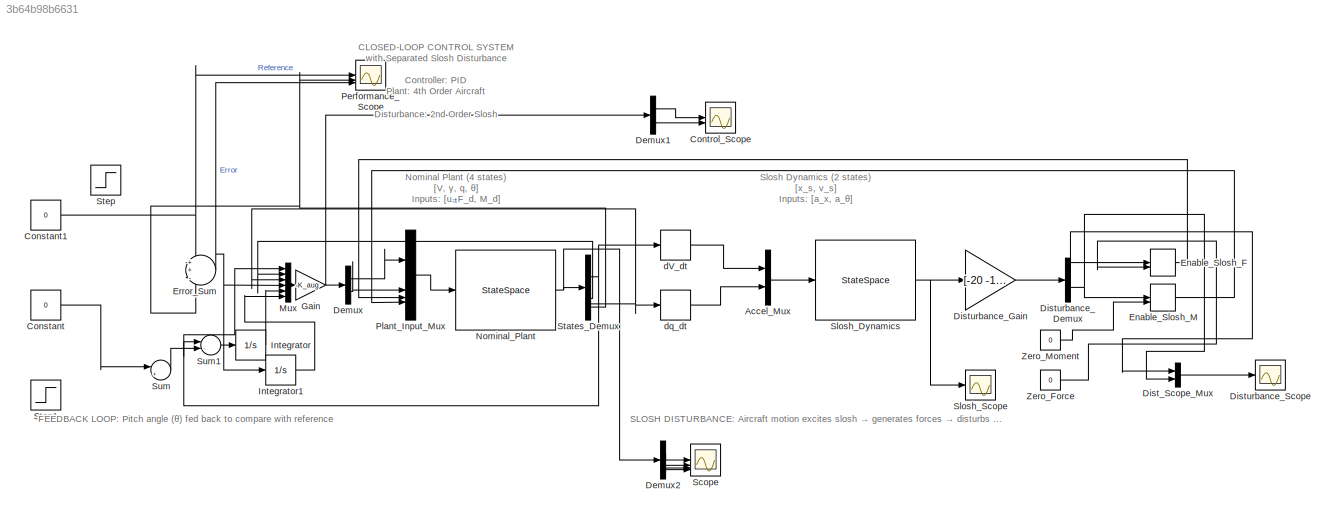
MODEL slx_3b64b98b6631
KIND model
CONFIG AbsTol = auto
CONFIG EnableMultiTasking = off
CONFIG FixedStep = auto
CONFIG MaxStep = auto
CONFIG MinStep = auto
CONFIG RelTol = 1e-3
CONFIG SampleTimeConstraint = Unconstrained
CONFIG SolverName = ode45
CONFIG StartTime = 0.0
CONFIG StopTime = 20
BLOCK [Mux] Accel_Mux
  DisplayOption = bar
  Inputs = 2
BLOCK [Constant] Constant
  Value = 0
BLOCK [Constant] Constant1
  Value = 0
BLOCK [Scope] Control_Scope
  ActiveDisplayYMaximum = 1
  ActiveDisplayYMinimum = -1
  Floating = off
  GraphicalSettings = {"Style":{"BackgroundColor":[0.12941176470588237,0.12941176470588237,0.12941176470588237],"AxesColor":[0.07058823529411765,0.07058823529411765,0.07058823529411765],"LabelsColor":[0.8509803921568627,0.8509803921568627,0.8509803921568627],"PreserveColors":false,"Visible":[true,true],"LineStyle":["-","-"],"LineWidth":[1.5,1.5],"BarWidth":[0.9,0.9],"LineColor":["auto","auto"],"LineFaceAlpha":[1,1],"Li...<+2465ch>
  LayoutDimensionsString = [2,1]
  MultipleDisplayCache = [{"MaxYLimMag":1,"MaxYLimReal":1,"MinYLimMag":0,"MinYLimReal":-1,"PlotAsMagnitudePhase":false,"ShowGrid":true,"ShowLegend":false,"Title":"%<SignalLabel>","YLabel":""},{"MaxYLimMag":1,"MaxYLimReal":1,"MinYLimMag":0,"MinYLimReal":-1,"PlotAsMagnitudePhase":false,"ShowGrid":true,"ShowLegend":false,"Title":"%<SignalLabel>","YLabel":""}]
  NumInputPorts = 2
  ScopeFrameLocation = window
  Visible = on
  WasSavedAsWebScope = on
  WindowPosition = [1058.000000,-1479.000000,445.000000,329.000000,]
BLOCK [Demux] Demux
  Outputs = 2
BLOCK [Demux] Demux1
  Outputs = 2
BLOCK [Demux] Demux2
BLOCK [Mux] Dist_Scope_Mux
  DisplayOption = bar
  Inputs = 2
BLOCK [Demux] Disturbance_Demux
  Outputs = 2
BLOCK [Gain] Disturbance_Gain
  Gain = [-20 -10;-30 -15]
  Multiplication = Matrix(K*u)
BLOCK [Scope] Disturbance_Scope
  ActiveDisplayYMaximum = 1
  ActiveDisplayYMinimum = -1
  Floating = off
  GraphicalSettings = {"Style":{"BackgroundColor":[0.12941176470588237,0.12941176470588237,0.12941176470588237],"AxesColor":[0.07058823529411765,0.07058823529411765,0.07058823529411765],"LabelsColor":[0.8509803921568627,0.8509803921568627,0.8509803921568627],"PreserveColors":false,"Visible":[true,true],"LineStyle":["-","-"],"LineWidth":[1.5,1.5],"BarWidth":[0.9,0.9],"LineColor":["auto","auto"],"LineFaceAlpha":[1,1],"Li...<+2065ch>
  MultipleDisplayCache = [{"MaxYLimMag":1,"MaxYLimReal":1,"MinYLimMag":0,"MinYLimReal":-1,"PlotAsMagnitudePhase":false,"ShowGrid":true,"ShowLegend":false,"Title":"%<SignalLabel>","YLabel":""}]
  NumInputPorts = 1
  ScopeFrameLocation = window
  WasSavedAsWebScope = on
  WindowPosition = [179.000000,211.000000,560.000000,420.000000,]
BLOCK [ManualSwitch] Enable_Slosh_F
  CurrentSetting = 0
BLOCK [ManualSwitch] Enable_Slosh_M
  CurrentSetting = 0
BLOCK [Sum] Error_Sum
  Inputs = ++-
BLOCK [Gain] Gain
  Gain = -K_aug
  Multiplication = Matrix(K*u)
BLOCK [Integrator] Integrator
BLOCK [Integrator] Integrator1
BLOCK [Mux] Mux
  DisplayOption = bar
  Inputs = 6
BLOCK [StateSpace] Nominal_Plant
  A = A_mimo
  B = B_nom
  C = C_nom
  D = D_nom
  InitialCondition = [0;0;0;0]
BLOCK [Scope] Performance_Scope
  ActiveDisplayYMaximum = 1
  ActiveDisplayYMinimum = -1
  Floating = off
  GraphicalSettings = {"Style":{"BackgroundColor":[0.12941176470588237,0.12941176470588237,0.12941176470588237],"AxesColor":[0.07058823529411765,0.07058823529411765,0.07058823529411765],"LabelsColor":[0.8509803921568627,0.8509803921568627,0.8509803921568627],"PreserveColors":false,"Visible":[true,true,true],"LineStyle":["-","-","-"],"LineWidth":[1.5,1.5,1.5],"BarWidth":[0.9,0.9,0.9],"LineColor":["auto","auto","auto"],"...<+2841ch>
  LayoutDimensionsString = [3,1]
  MultipleDisplayCache = [{"MaxYLimMag":1,"MaxYLimReal":1,"MinYLimMag":0,"MinYLimReal":-1,"PlotAsMagnitudePhase":false,"ShowGrid":true,"ShowLegend":false,"Title":"%<SignalLabel>","YLabel":""},{"MaxYLimMag":1,"MaxYLimReal":1,"MinYLimMag":0,"MinYLimReal":-1,"PlotAsMagnitudePhase":false,"ShowGrid":true,"ShowLegend":false,"Title":"%<SignalLabel>","YLabel":""},{"MaxYLimMag":1,"MaxYLimReal":1,"MinYLimMag":0,"MinYLimReal":-1,"Pl...<+99ch>
  NumInputPorts = 3
  ScopeFrameLocation = window
  Visible = on
  WasSavedAsWebScope = on
  WindowPosition = [1964.000000,-1292.000000,445.000000,329.000000,]
BLOCK [Mux] Plant_Input_Mux
  DisplayOption = bar
BLOCK [Scope] Scope
  ActiveDisplayYMaximum = 1
  ActiveDisplayYMinimum = -1
  DataLoggingVariableName = ScopeData1
  Floating = off
  GraphicalSettings = {"Style":{"BackgroundColor":[0.12941176470588237,0.12941176470588237,0.12941176470588237],"AxesColor":[0.07058823529411765,0.07058823529411765,0.07058823529411765],"LabelsColor":[0.8509803921568627,0.8509803921568627,0.8509803921568627],"PreserveColors":false,"Visible":[true,true,true,true],"LineStyle":["-","-","-","-"],"LineWidth":[1.5,1.5,1.5,1.5],"BarWidth":[0.9,0.9,0.9,0.9],"LineColor":["auto"...<+3356ch>
  LayoutDimensionsString = [2,2]
  MultipleDisplayCache = [{"MaxYLimMag":1,"MaxYLimReal":1,"MinYLimMag":0,"MinYLimReal":-1,"PlotAsMagnitudePhase":false,"ShowGrid":true,"ShowLegend":false,"Title":"%<SignalLabel>","YLabel":""},{"MaxYLimMag":1,"MaxYLimReal":1,"MinYLimMag":0,"MinYLimReal":-1,"PlotAsMagnitudePhase":false,"ShowGrid":true,"ShowLegend":false,"Title":"%<SignalLabel>","YLabel":""},{"MaxYLimMag":1,"MaxYLimReal":1,"MinYLimMag":0,"MinYLimReal":-1,"Pl...<+265ch>
  NumInputPorts = 4
  ScopeFrameLocation = window
  Visible = on
  WasSavedAsWebScope = on
  WindowPosition = [1653.000000,-1132.000000,560.000000,420.000000,]
BLOCK [StateSpace] Slosh_Dynamics
  A = A_slosh
  B = B_slosh
  C = C_slosh
  D = [0 0;0 0]
  InitialCondition = [0.1;0]
BLOCK [Scope] Slosh_Scope
  Floating = off
  GraphicalSettings = {"GraphicalSettings":{"LegacySettings":true,"Style":{"Style":{"PlotType":"Auto"}}}}
  NumInputPorts = 1
  WasSavedAsWebScope = on
BLOCK [Demux] States_Demux
BLOCK [Step] Step
  After = 0.1
  SampleTime = 0
BLOCK [Step] Step1
  SampleTime = 0
BLOCK [Sum] Sum
  Inputs = |++
BLOCK [Sum] Sum1
  Inputs = |-+
BLOCK [Constant] Zero_Force
  Value = 0
BLOCK [Constant] Zero_Moment
  Value = 0
BLOCK [Derivative] dV_dt
BLOCK [Derivative] dq_dt
ANNOTATION (root): CLOSED-LOOP CONTROL SYSTEM\nwith Separated Slosh Disturbance\n\nController: PID\nPlant: 4th Order Aircraft\nDisturbance: 2nd Order Slosh
ANNOTATION (root): FEEDBACK LOOP: Pitch angle (θ) fed back to compare with reference
ANNOTATION (root): Nominal Plant (4 states)\n[V, γ, q, θ]\nInputs: [u, F_d, M_d]
ANNOTATION (root): SLOSH DISTURBANCE: Aircraft motion excites slosh → generates forces → disturbs plant
ANNOTATION (root): Slosh Dynamics (2 states)\n[x_s, v_s]\nInputs: [a_x, a_θ]
LINE Accel_Mux:1 -> Slosh_Dynamics:1
NET Constant1:1 -> Error_Sum:1, Performance_Scope:1
LINE Constant:1 -> Sum:1
LINE Demux1:1 -> Control_Scope:1
LINE Demux1:2 -> Control_Scope:2
LINE Demux2:1 -> Scope:1
LINE Demux2:2 -> Scope:2
LINE Demux2:3 -> Scope:3
LINE Demux2:4 -> Scope:4
LINE Demux:1 -> Plant_Input_Mux:1
LINE Demux:2 -> Plant_Input_Mux:2
LINE Dist_Scope_Mux:1 -> Disturbance_Scope:1
NET Disturbance_Demux:1 -> Dist_Scope_Mux:1, Enable_Slosh_F:1
NET Disturbance_Demux:2 -> Dist_Scope_Mux:2, Enable_Slosh_M:1
LINE Disturbance_Gain:1 -> Disturbance_Demux:1
LINE Enable_Slosh_F:1 -> Plant_Input_Mux:3
LINE Enable_Slosh_M:1 -> Plant_Input_Mux:4
NET Error_Sum:1 -> Integrator1:1, Mux:4, Performance_Scope:3
NET Gain:1 -> Demux1:1, Demux:1
LINE Integrator1:1 -> Mux:6
LINE Integrator:1 -> Mux:5
LINE Mux:1 -> Gain:1
NET Nominal_Plant:1 -> Demux2:1, States_Demux:1
LINE Plant_Input_Mux:1 -> Nominal_Plant:1
NET Slosh_Dynamics:1 -> Disturbance_Gain:1, Slosh_Scope:1
NET States_Demux:1 -> Mux:1, Sum1:1, dV_dt:1
LINE States_Demux:2 -> Mux:2
NET States_Demux:3 -> Mux:3, dq_dt:1
NET States_Demux:4 -> Error_Sum:3, Performance_Scope:2
LINE Sum1:1 -> Integrator:1
LINE Sum:1 -> Sum1:2
LINE Zero_Force:1 -> Enable_Slosh_F:2
LINE Zero_Moment:1 -> Enable_Slosh_M:2
LINE dV_dt:1 -> Accel_Mux:1
LINE dq_dt:1 -> Accel_Mux:2
note: NET lines group one-source signal fan-out (src -> all destinations, sorted); 1:1 wires keep LINE
